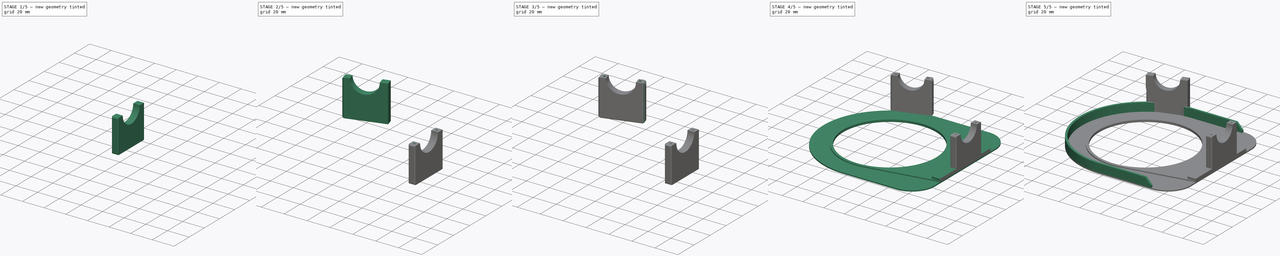
[diagram: build sequence overview — one tinted view per stage of 5, left to right]
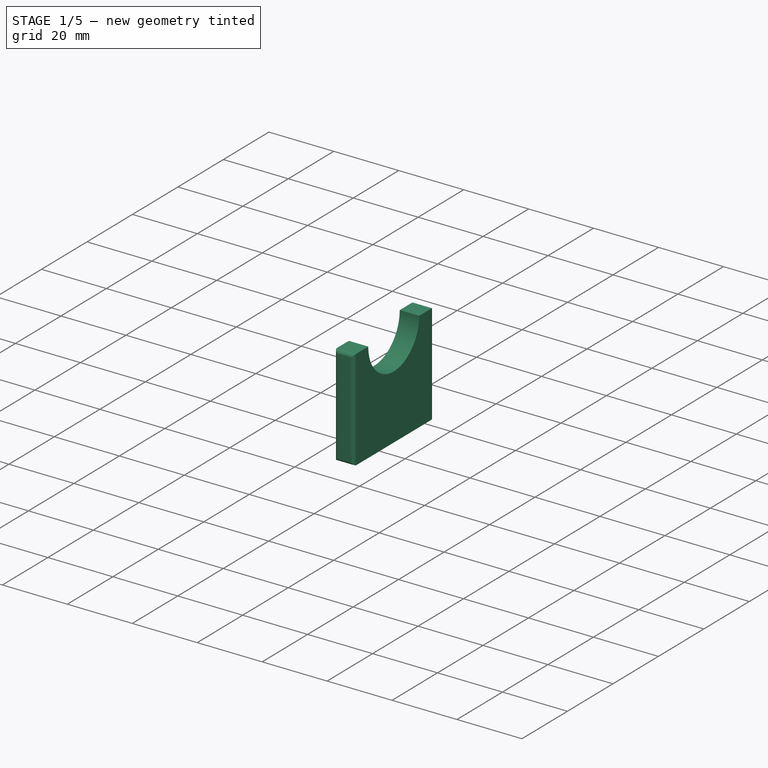
[diagram: stage 1 of 5 — iso view after this stage's code; geometry added in this stage tinted green]
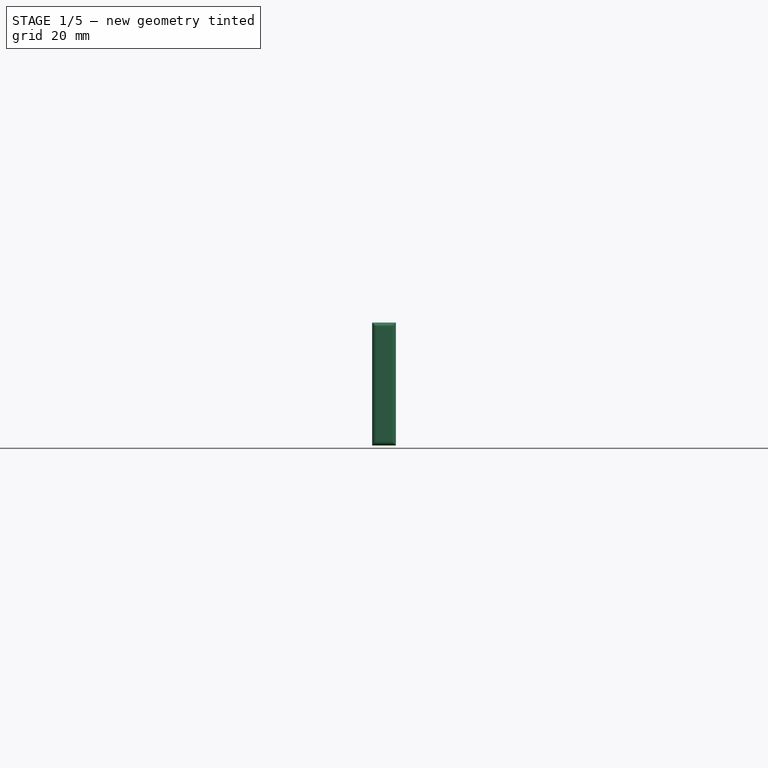
[diagram: stage 1 of 5 — front view after this stage's code; geometry added in this stage tinted green]
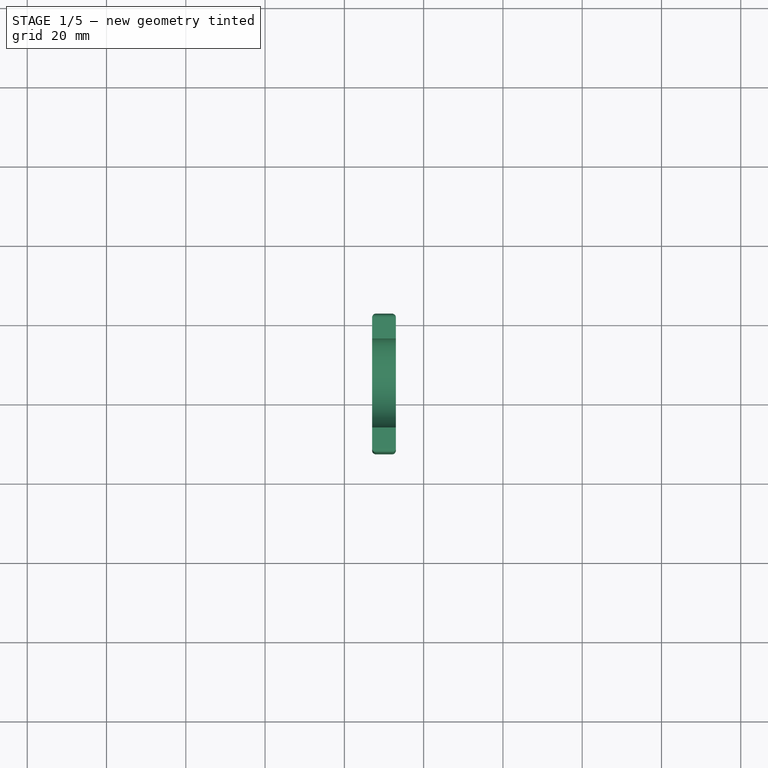
[diagram: stage 1 of 5 — top view after this stage's code; geometry added in this stage tinted green]
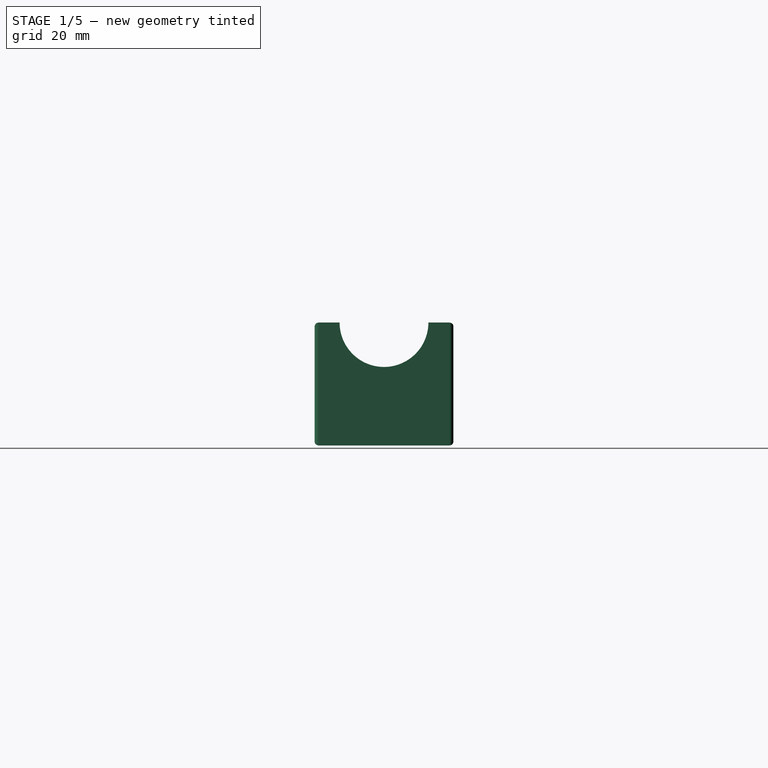
[diagram: stage 1 of 5 — right view after this stage's code; geometry added in this stage tinted green]
FCSTD DOCUMENT  (FreeCAD 0.16R)
Label: chainguard25TRear
License: All rights reserved
LicenseURL: http://en.wikipedia.org/wiki/All_rights_reserved
objects: Sketcher::SketchObject×12, PartDesign::Pad×6, PartDesign::Pocket×6, PartDesign::Fillet×5
note: 41 computed .brp shape members not serialized (recipe doc carries the construction recipe); baked Part::Feature solids carry a one-line shape summary decoded from their .brp

FEATURE [Sketcher::SketchObject] Sketch017
  sketch-geometry (5):
    g0: LineSegment [constr] StartX=-4 StartY=2 StartZ=0 EndX=-28.2669 EndY=81.3733 EndZ=0
    g1: LineSegment StartX=-6.10171 StartY=68.7297 StartZ=0 EndX=-39.5724 EndY=58.4967 EndZ=0
    g2: LineSegment StartX=-39.5724 StartY=58.4967 StartZ=0 EndX=-37.8181 EndY=52.7588 EndZ=0
    g3: LineSegment StartX=-37.8181 StartY=52.7588 StartZ=0 EndX=-4.34748 EndY=62.9919 EndZ=0
    g4: LineSegment StartX=-4.34748 StartY=62.9919 StartZ=0 EndX=-6.10171 EndY=68.7297 EndZ=0
  constraints (15):
    c: DistanceY(g-1,g0) = 2
    c: DistanceX(g-1,g0) = -4
    c: Angle(g0) = 1.8675
    c: Coincident(g1,g2)
    c: Coincident(g2,g3)
    c: Coincident(g3,g4)
    c: Coincident(g1,g4)
    c: Parallel(g2,g4)
    c: Parallel(g1,g3)
    c: Perpendicular(g2,g1)
    c: Distance(g4) = 6
    c: Distance(g1) = 35
    c: Symmetric(g3,g2,g0)
    c: Distance(g-1,g1) = 69
    c: Distance(g0) = 83
FEATURE [Sketcher::SketchObject] Sketch020
  sketch-geometry (4):
    g0: LineSegment StartX=67 StartY=22.5 StartZ=0 EndX=73 EndY=22.5 EndZ=0
    g1: LineSegment StartX=73 StartY=22.5 StartZ=0 EndX=73 EndY=-12.5 EndZ=0
    g2: LineSegment StartX=73 StartY=-12.5 StartZ=0 EndX=67 EndY=-12.5 EndZ=0
    g3: LineSegment StartX=67 StartY=-12.5 StartZ=0 EndX=67 EndY=22.5 EndZ=0
  constraints (12):
    c: Coincident(g0,g1)
    c: Coincident(g1,g2)
    c: Coincident(g2,g3)
    c: Coincident(g3,g0)
    c: Horizontal(g0)
    c: Horizontal(g2)
    c: Vertical(g1)
    c: Vertical(g3)
    c: DistanceX(g-1,g0) = 73
    c: DistanceX(g0,g0) = 6
    c: DistanceY(g-1,g0) = 22.5
    c: DistanceY(g1,g1) = 35
FEATURE [PartDesign::Pad] Pad004  label="SyncBoss"
  Length = 31
  Length2 = 100
  Sketch = -> Sketch020
  Type = 0
FEATURE [Sketcher::SketchObject] Sketch021
  ExternalGeometry = -> [Pad004]
  Placement = pos=(73,0,0) rot=(0.57735,0.57735,0.57735;2.0944rad)
  Support = -> Pad004 [Face2]
  sketch-geometry (1):
    g0: Circle CenterX=5 CenterY=31 CenterZ=0 NormalX=0 NormalY=0 NormalZ=1 Radius=11.2
  constraints (2):
    c: Symmetric(g-4,g-3,g0)
    c: Radius(g0) = 11.2
FEATURE [PartDesign::Pocket] Pocket  label="SyncHole"
  Length = 5
  Sketch = -> Sketch021
  Type = 1
FEATURE [PartDesign::Fillet] Fillet004  label="Fillet_Sync"
  Base = -> Pocket [Edge11,Edge9,Edge15,Edge18,Edge1,Edge2,Edge3,Edge4]
  Radius = 1
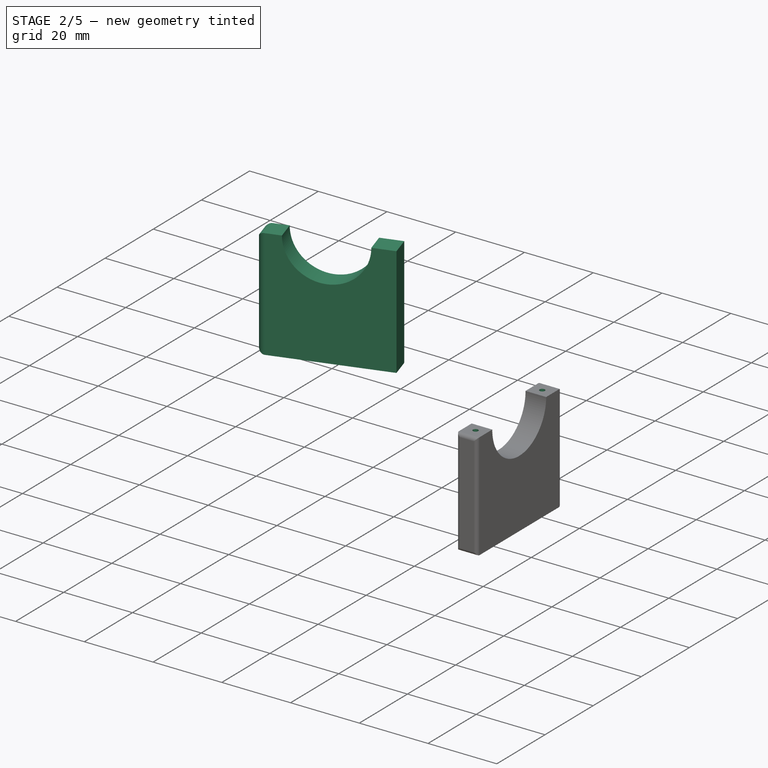
[diagram: stage 2 of 5 — iso view after this stage's code; geometry added in this stage tinted green]
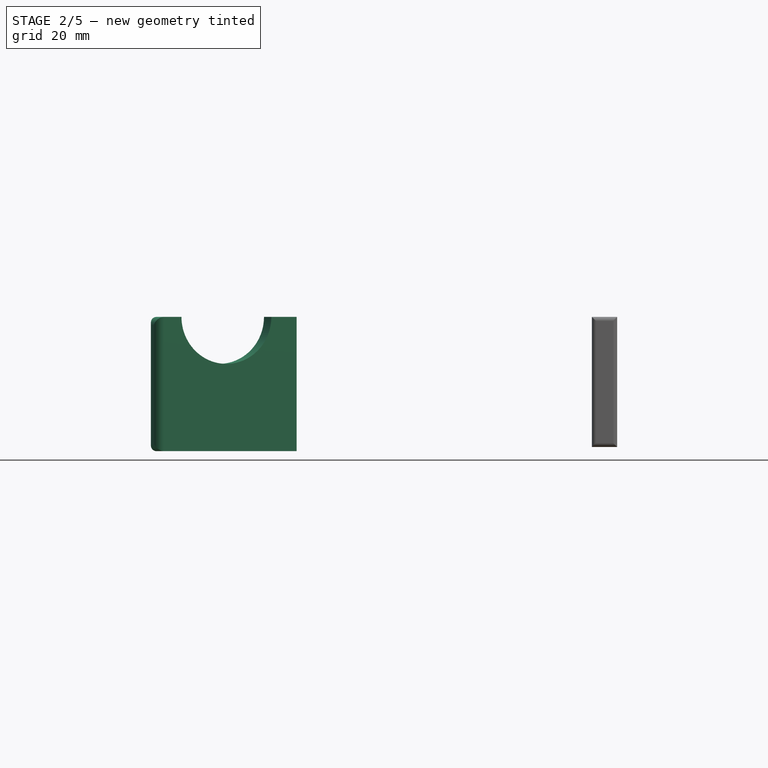
[diagram: stage 2 of 5 — front view after this stage's code; geometry added in this stage tinted green]
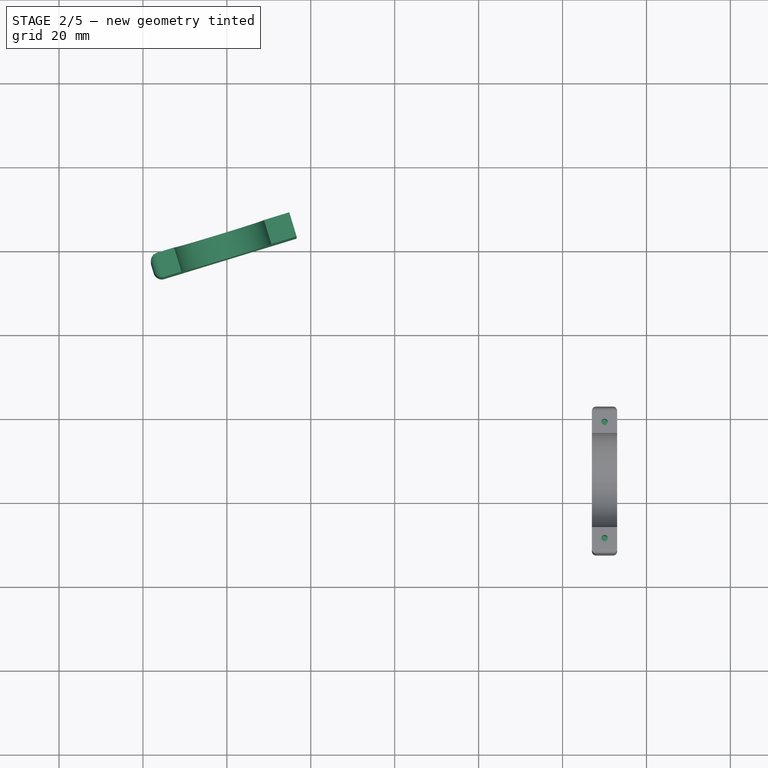
[diagram: stage 2 of 5 — top view after this stage's code; geometry added in this stage tinted green]
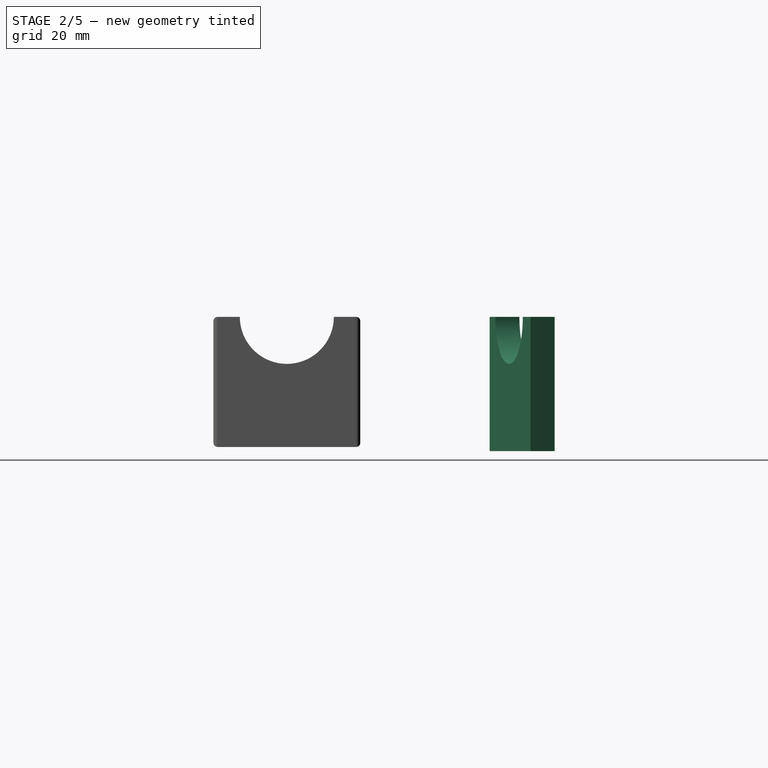
[diagram: stage 2 of 5 — right view after this stage's code; geometry added in this stage tinted green]
FEATURE [PartDesign::Pad] Pad005  label="STBoss"
  Length = 31
  Length2 = 1
  Sketch = -> Sketch017
  Type = 4
FEATURE [Sketcher::SketchObject] Sketch022
  ExternalGeometry = -> [Pad005]
  Placement = pos=(-19.677,64.3606,0) rot=(-0.105093,0.703191,0.703191;3.35101rad)
  Support = -> Pad005 [Face1]
  sketch-geometry (1):
    g0: Circle CenterX=2.28417 CenterY=31 CenterZ=0 NormalX=0 NormalY=0 NormalZ=1 Radius=11.2
  constraints (2):
    c: Symmetric(g-4,g-3,g0)
    c: Radius(g0) = 11.2
FEATURE [PartDesign::Pocket] Pocket006  label="SThole"
  Length = 5
  Sketch = -> Sketch022
  Type = 1
FEATURE [PartDesign::Fillet] Fillet001
  Base = -> Pocket006 [Edge2,Edge10,Edge7,Edge11]
  Radius = 2
FEATURE [Sketcher::SketchObject] Sketch027
  ExternalGeometry = -> [Fillet004]
  Placement = pos=(0,0,31) rot=(0,0,1;0rad)
  Support = -> Fillet004 [Face8]
  sketch-geometry (2):
    g0: Circle CenterX=70 CenterY=18.85 CenterZ=0 NormalX=0 NormalY=0 NormalZ=1 Radius=0.75
    g1: Circle CenterX=70 CenterY=-8.85 CenterZ=0 NormalX=0 NormalY=0 NormalZ=1 Radius=0.75
  constraints (4):
    c: Symmetric(g-4,g-5,g1)
    c: Symmetric(g-3,g-6,g0)
    c: Equal(g0,g1)
    c: Radius(g0) = 0.75
FEATURE [PartDesign::Pocket] Pocket009  label="SyncSCrewHoles"
  Length = 12
  Sketch = -> Sketch027
  Type = 0
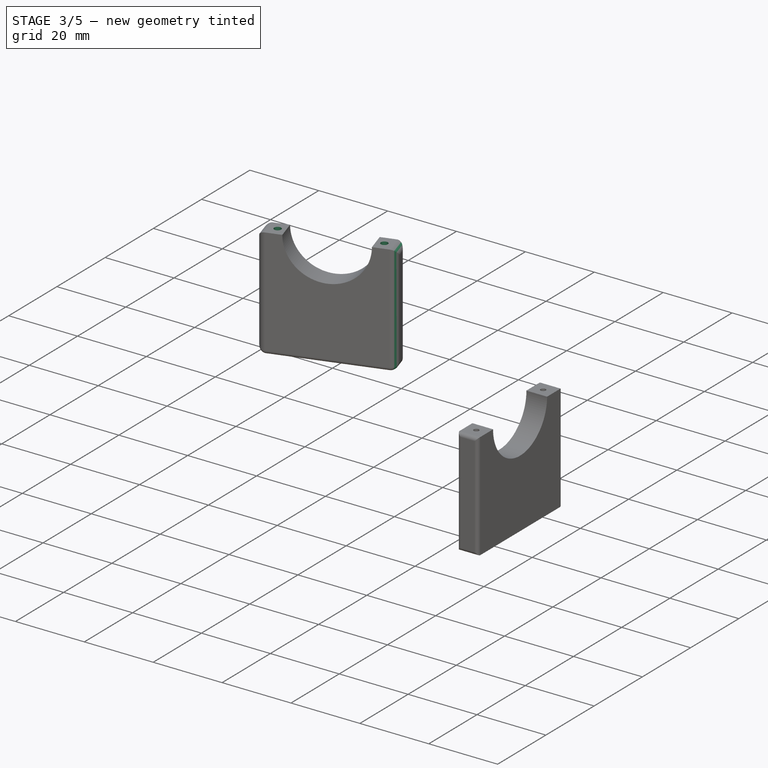
[diagram: stage 3 of 5 — iso view after this stage's code; geometry added in this stage tinted green]
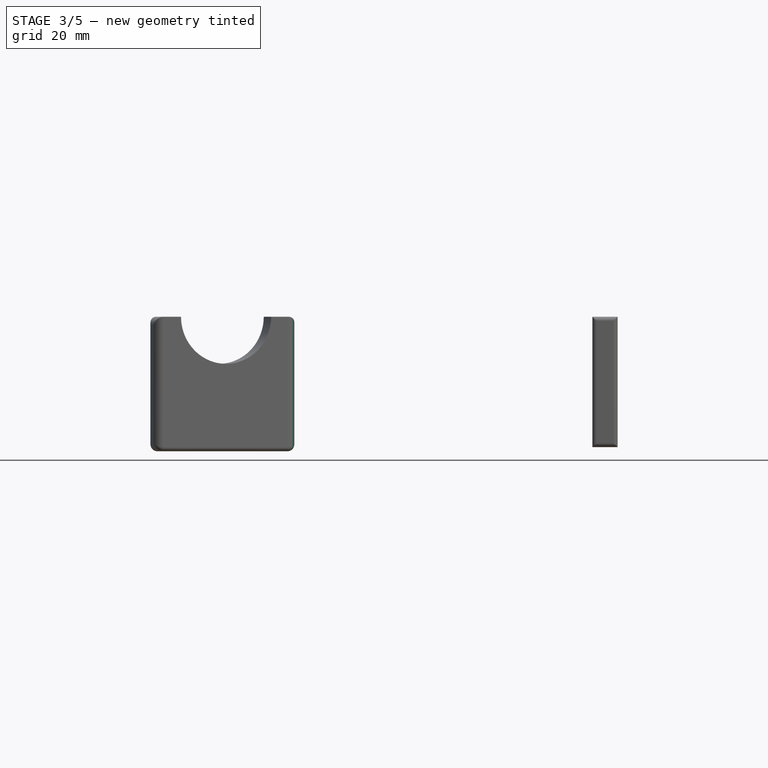
[diagram: stage 3 of 5 — front view after this stage's code; geometry added in this stage tinted green]
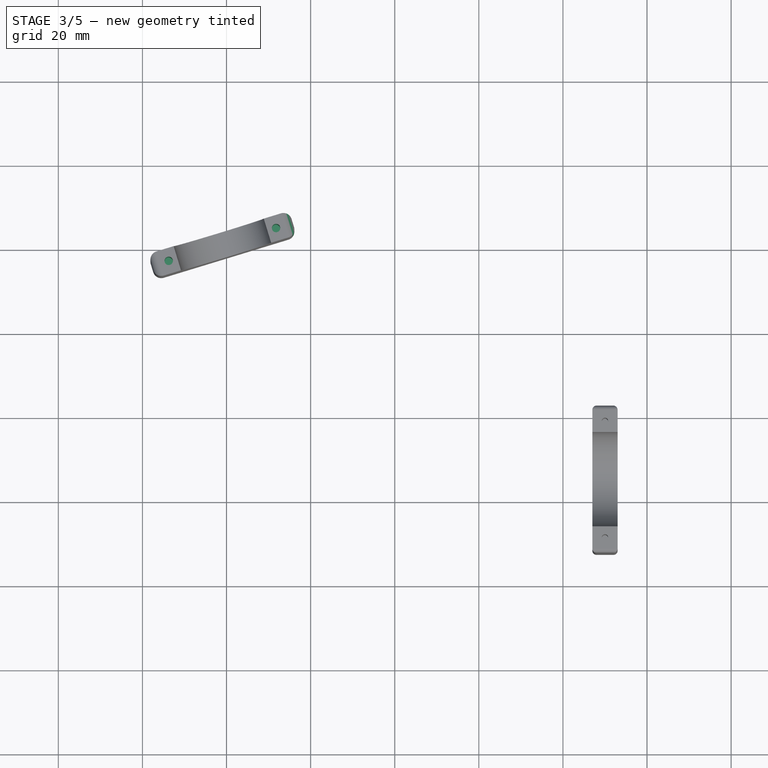
[diagram: stage 3 of 5 — top view after this stage's code; geometry added in this stage tinted green]
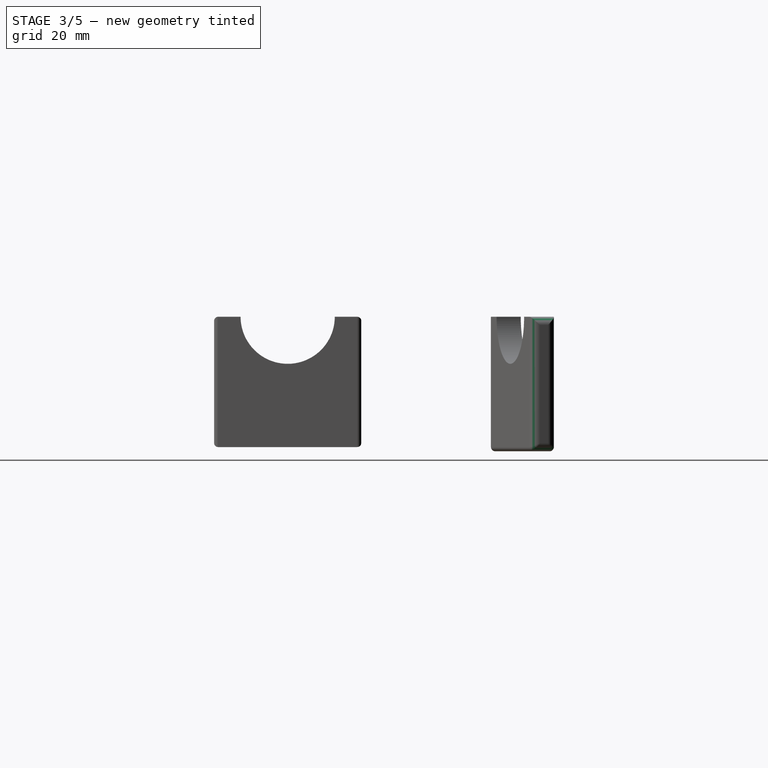
[diagram: stage 3 of 5 — right view after this stage's code; geometry added in this stage tinted green]
FEATURE [PartDesign::Fillet] Fillet002
  Base = -> Fillet001 [Edge13,Edge3,Edge8,Edge14]
  Radius = 2
FEATURE [PartDesign::Fillet] Fillet003  label="fillet_ST1"
  Base = -> Fillet002 [Edge1,Edge9]
  Radius = 1
FEATURE [Sketcher::SketchObject] Sketch026
  ExternalGeometry = -> [Fillet003]
  Placement = pos=(0,0,31) rot=(0,0,1;0rad)
  Support = -> Fillet003 [Face4]
  sketch-geometry (4):
    g0: Circle CenterX=-8.21761 CenterY=64.7271 CenterZ=0 NormalX=0 NormalY=0 NormalZ=1 Radius=1
    g1: Circle CenterX=-33.7509 CenterY=56.9207 CenterZ=0 NormalX=0 NormalY=0 NormalZ=1 Radius=1
    g2: Circle CenterX=66.9629 CenterY=24.5752 CenterZ=0 NormalX=0 NormalY=0 NormalZ=1 Radius=1.79531
    g3: Circle CenterX=61.4622 CenterY=-12.93 CenterZ=0 NormalX=0 NormalY=0 NormalZ=1 Radius=4.02825
  constraints (4):
    c: Symmetric(g-5,g-6,g1)
    c: Symmetric(g-3,g-4,g0)
    c: Equal(g0,g1)
    c: Radius(g0) = 1
FEATURE [PartDesign::Pocket] Pocket008  label="STscrewHoles"
  Length = 12
  Sketch = -> Sketch026
  Type = 0
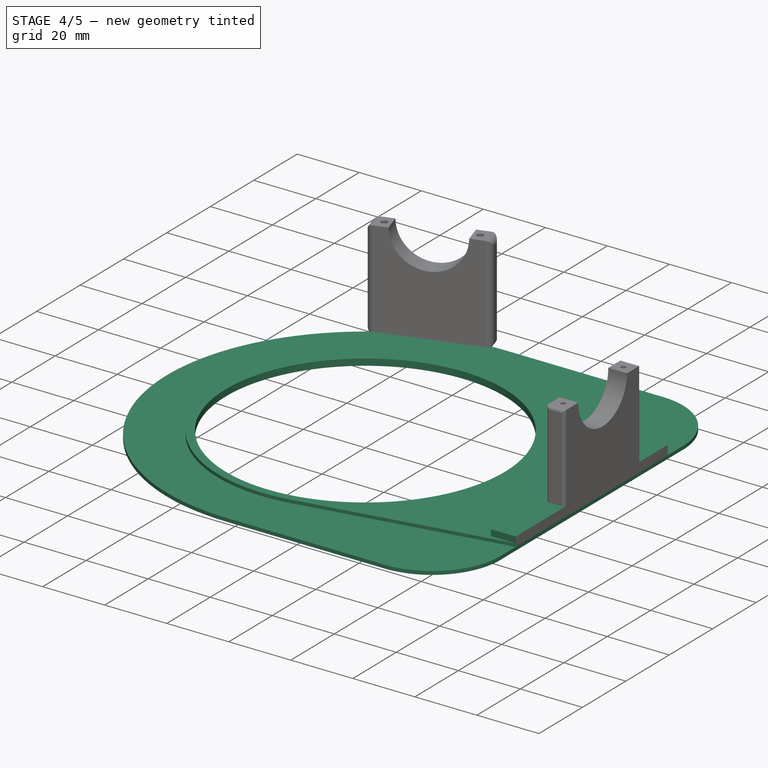
[diagram: stage 4 of 5 — iso view after this stage's code; geometry added in this stage tinted green]
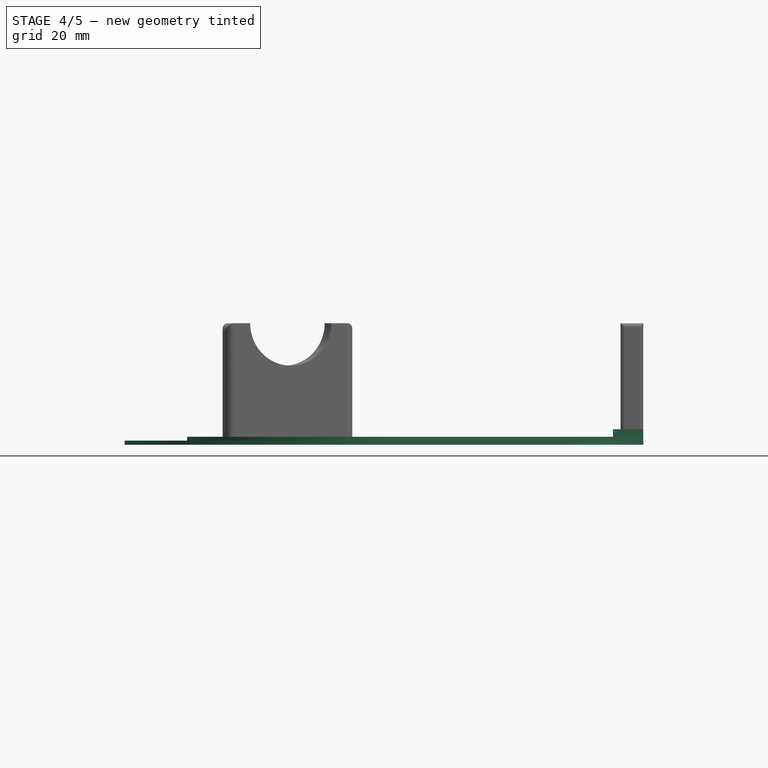
[diagram: stage 4 of 5 — front view after this stage's code; geometry added in this stage tinted green]
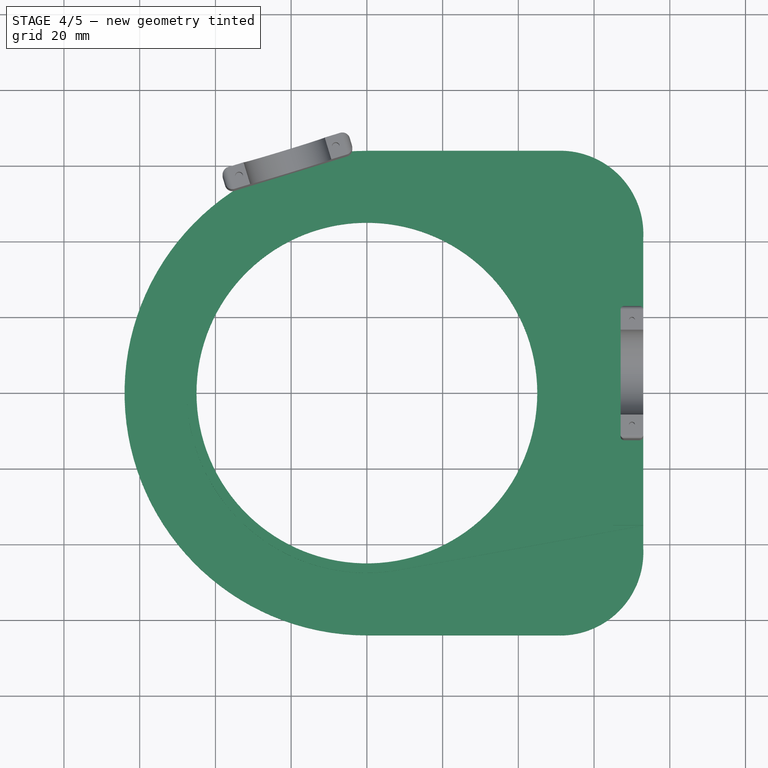
[diagram: stage 4 of 5 — top view after this stage's code; geometry added in this stage tinted green]
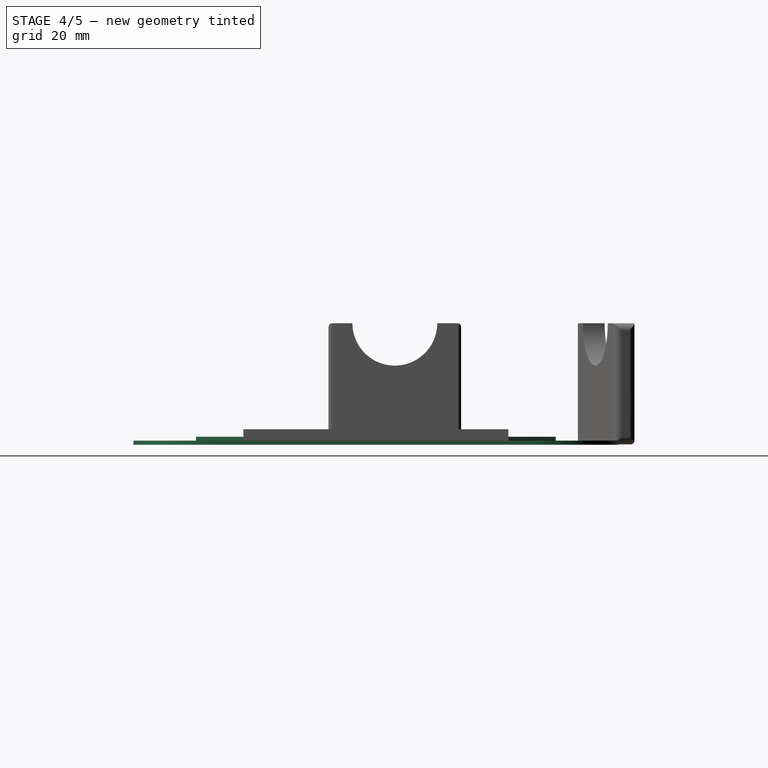
[diagram: stage 4 of 5 — right view after this stage's code; geometry added in this stage tinted green]
FEATURE [Sketcher::SketchObject] Sketch001
  sketch-geometry (7):
    g0: LineSegment StartX=50 StartY=64 StartZ=0 EndX=0 EndY=64 EndZ=0
    g1: LineSegment StartX=50 StartY=-64 StartZ=0 EndX=0 EndY=-64 EndZ=0
    g2: ArcOfCircle CenterX=-6.3665e-05 CenterY=0 CenterZ=0 NormalX=0 NormalY=0 NormalZ=1 Radius=64 StartAngle=1.5708 EndAngle=4.71239
    g3: Circle CenterX=0 CenterY=0 CenterZ=0 NormalX=0 NormalY=0 NormalZ=1 Radius=45
    g4: ArcOfCircle CenterX=51.0238 CenterY=42.0238 CenterZ=0 NormalX=0 NormalY=0 NormalZ=1 Radius=22 StartAngle=6.23663 EndAngle=7.90054
    g5: ArcOfCircle CenterX=51.0238 CenterY=-42.0238 CenterZ=0 NormalX=0 NormalY=0 NormalZ=1 Radius=22 StartAngle=4.66583 EndAngle=6.32974
    g6: LineSegment StartX=73 StartY=41 StartZ=0 EndX=73 EndY=-41 EndZ=0
  constraints (22):
    c: Horizontal(g0)
    c: Horizontal(g1)
    c: Coincident(g2,g1)
    c: Coincident(g0,g2)
    c: DistanceX(g1,g0) = 0
    c: Equal(g0,g1)
    c: DistanceY(g1,g0) = 128
    c: Radius(g2) = 64
    c: Symmetric(g1,g0,g-1)
    c: Radius(g3) = 45
    c: Coincident(g3,g-1)
    c: DistanceX(g0,g0) = 50
    c: Vertical(g6)
    c: Symmetric(g6,g6,g-1)
    c: DistanceY(g6,g6) = 82
    c: Coincident(g4,g6)
    c: Coincident(g5,g6)
    c: Coincident(g1,g5)
    c: Coincident(g0,g4)
    c: DistanceX(g-1,g4) = 73
    c: Radius(g4) = 22
    c: Equal(g5,g4)
FEATURE [PartDesign::Pad] Pad  label="Faceplate"
  Length = 1.12
  Length2 = 100
  Reversed = true
  Sketch = -> Sketch001
  Type = 0
FEATURE [Sketcher::SketchObject] Sketch
  Support = -> Pad [Face8]
  sketch-geometry (4):
    g0: LineSegment StartX=65 StartY=35 StartZ=0 EndX=73 EndY=35 EndZ=0
    g1: LineSegment StartX=73 StartY=35 StartZ=0 EndX=73 EndY=-35 EndZ=0
    g2: LineSegment StartX=73 StartY=-35 StartZ=0 EndX=65 EndY=-35 EndZ=0
    g3: LineSegment StartX=65 StartY=-35 StartZ=0 EndX=65 EndY=35 EndZ=0
  constraints (12):
    c: Coincident(g0,g1)
    c: Coincident(g1,g2)
    c: Coincident(g2,g3)
    c: Coincident(g3,g0)
    c: Horizontal(g0)
    c: Horizontal(g2)
    c: Vertical(g1)
    c: Vertical(g3)
    c: Symmetric(g0,g2,g-1)
    c: DistanceX(g0,g0) = 8
    c: DistanceX(g-1,g0) = 73
    c: DistanceY(g3,g3) = 70
FEATURE [PartDesign::Pad] Pad003  label="SyncStiffener"
  Length = 3
  Length2 = 100
  Sketch = -> Sketch
  Type = 0
FEATURE [Sketcher::SketchObject] Sketch024
  ExternalGeometry = -> [Pad003]
  Support = -> Pad003 [Face4]
  sketch-geometry (5):
    g0: ArcOfCircle CenterX=0 CenterY=0 CenterZ=0 NormalX=0 NormalY=0 NormalZ=1 Radius=47.5 StartAngle=1.39086 EndAngle=4.89233
    g1: Circle CenterX=0 CenterY=0 CenterZ=0 NormalX=0 NormalY=0 NormalZ=1 Radius=45
    g2: LineSegment StartX=8.50102 StartY=46.7331 StartZ=0 EndX=73 EndY=35 EndZ=0
    g3: LineSegment StartX=8.50102 StartY=-46.7331 StartZ=0 EndX=73 EndY=-35 EndZ=0
    g4: LineSegment StartX=73 StartY=35 StartZ=0 EndX=73 EndY=-35 EndZ=0
  constraints (12):
    c: Coincident(g0,g-1)
    c: Radius(g0) = 47.5
    c: Coincident(g1,g-1)
    c: Radius(g1) = 45
    c: Coincident(g-4,g3)
    c: Coincident(g-4,g2)
    c: Coincident(g0,g2)
    c: Coincident(g0,g3)
    c: Coincident(g2,g4)
    c: Coincident(g4,g3)
    c: DistanceY(g0,g-1) = 46.7331
    c: DistanceY(g-1,g0) = 46.7331
FEATURE [PartDesign::Pad] Pad006  label="HoleStiffener"
  Length = 1
  Length2 = 100
  Sketch = -> Sketch024
  Type = 0
FEATURE [PartDesign::Fillet] Fillet
  Base = -> Pad [Edge4,Edge7,Edge10,Edge13,Edge16,Edge18,Edge21]
  Radius = 1
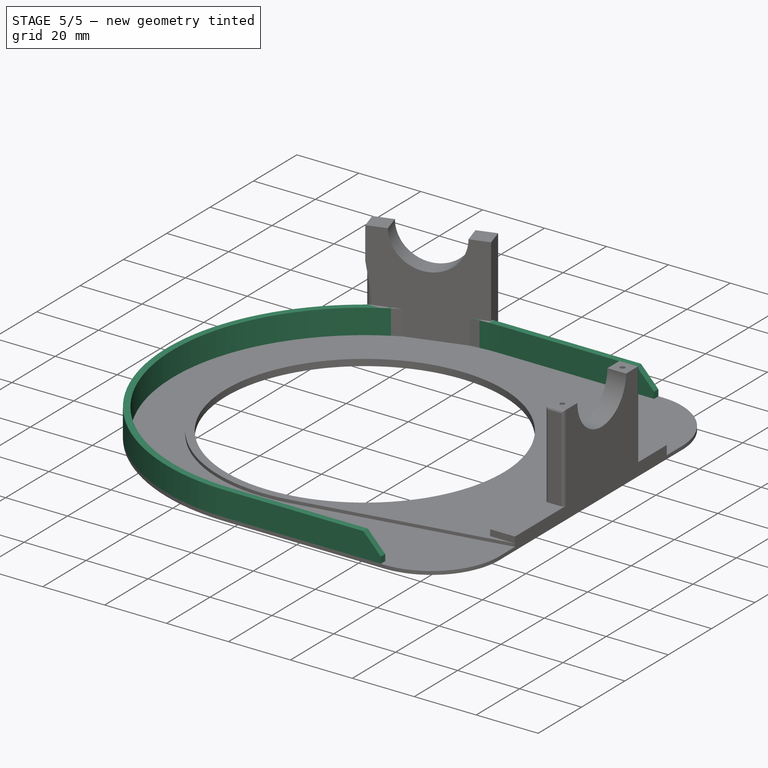
[diagram: stage 5 of 5 — iso view after this stage's code; geometry added in this stage tinted green]
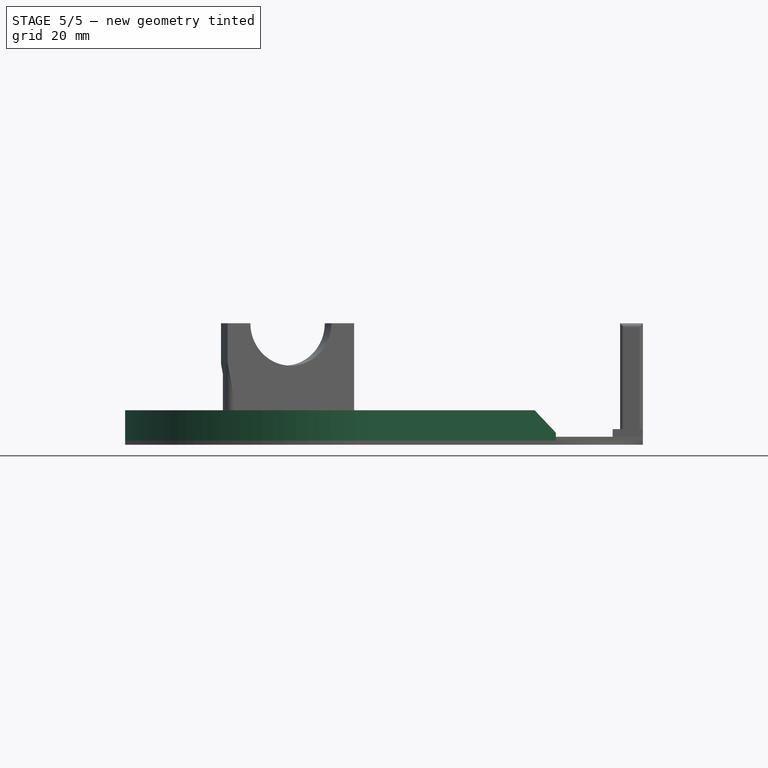
[diagram: stage 5 of 5 — front view after this stage's code; geometry added in this stage tinted green]
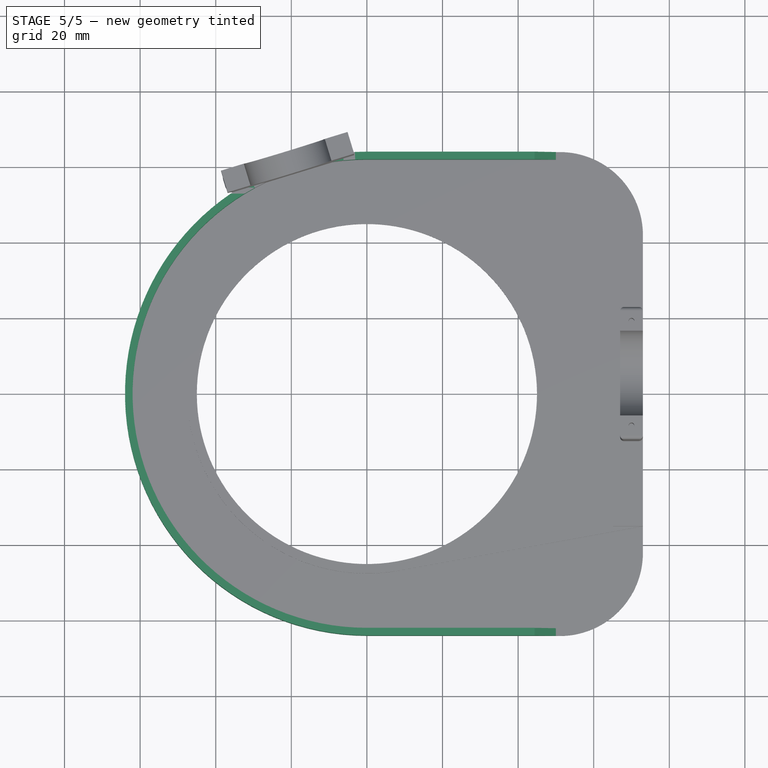
[diagram: stage 5 of 5 — top view after this stage's code; geometry added in this stage tinted green]
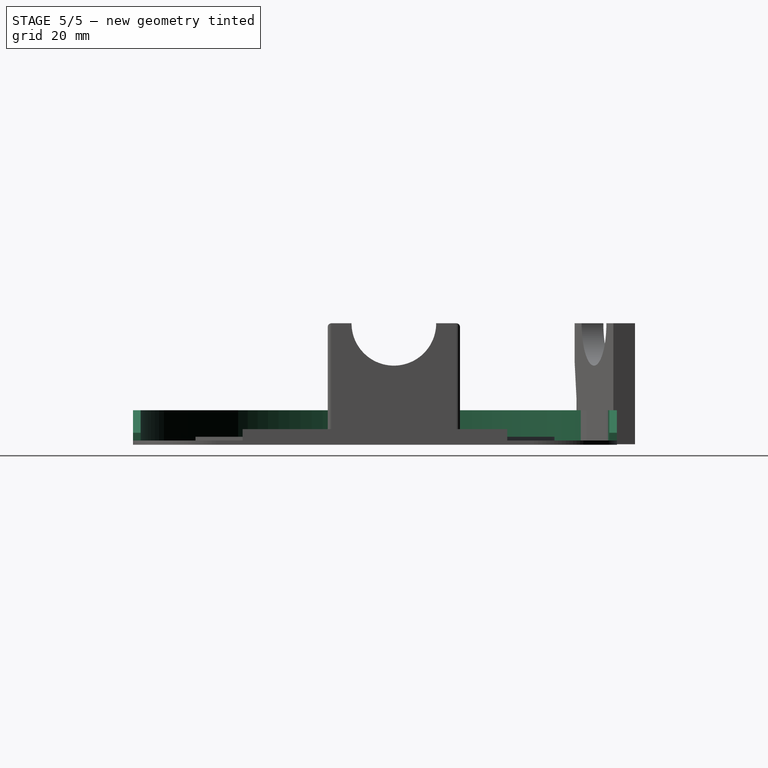
[diagram: stage 5 of 5 — right view after this stage's code; geometry added in this stage tinted green]
FEATURE [Sketcher::SketchObject] Sketch002
  sketch-geometry (8):
    g0: LineSegment StartX=50 StartY=64 StartZ=0 EndX=0 EndY=64 EndZ=0
    g1: LineSegment StartX=50 StartY=-64 StartZ=0 EndX=0 EndY=-64 EndZ=0
    g2: ArcOfCircle CenterX=5.67081e-05 CenterY=0 CenterZ=0 NormalX=0 NormalY=0 NormalZ=1 Radius=64 StartAngle=1.5708 EndAngle=4.71239
    g3: LineSegment StartX=0 StartY=62 StartZ=0 EndX=50 EndY=62 EndZ=0
    g4: LineSegment StartX=0 StartY=-62 StartZ=0 EndX=50 EndY=-62 EndZ=0
    g5: LineSegment StartX=50 StartY=64 StartZ=0 EndX=50 EndY=62 EndZ=0
    g6: LineSegment StartX=50 StartY=-62 StartZ=0 EndX=50 EndY=-64 EndZ=0
    g7: ArcOfCircle CenterX=3.52524e-05 CenterY=0 CenterZ=0 NormalX=0 NormalY=0 NormalZ=1 Radius=62 StartAngle=1.5708 EndAngle=4.71239
  constraints (25):
    c: Horizontal(g0)
    c: Horizontal(g1)
    c: Coincident(g2,g1)
    c: Coincident(g0,g2)
    c: DistanceX(g1,g0) = 0
    c: Equal(g0,g1)
    c: DistanceY(g1,g0) = 128
    c: Radius(g2) = 64
    c: Symmetric(g1,g0,g-1)
    c: Radius(g7) = 62
    c: Parallel(g0,g3)
    c: DistanceY(g3,g0) = 2
    c: DistanceY(g1,g4) = 2
    c: Parallel(g4,g1)
    c: DistanceX(g0,g3) = 0
    c: DistanceX(g4) = 0
    c: DistanceX(g0) = 50
    c: Equal(g3,g0)
    c: Equal(g4,g0)
    c: Coincident(g4,g6)
    c: Coincident(g6,g1)
    c: Coincident(g5,g3)
    c: Coincident(g5,g0)
    c: Coincident(g7,g3)
    c: Coincident(g7,g4)
FEATURE [PartDesign::Pad] Pad001  label="Connector"
  Length = 8
  Length2 = 100
  Sketch = -> Sketch002
  Type = 0
FEATURE [Sketcher::SketchObject] Sketch011
  Placement = pos=(0,64,0) rot=(0,0.707107,0.707107;3.14159rad)
  Support = -> Pad001 [Face1]
  sketch-geometry (4):
    g0: LineSegment StartX=-44 StartY=8.40024 StartZ=0 EndX=-54.2498 EndY=10.8364 EndZ=0
    g1: LineSegment StartX=-54.2498 StartY=10.8364 StartZ=0 EndX=-51.2347 EndY=0.741769 EndZ=0
    g2: LineSegment StartX=-51.2347 StartY=0.741769 StartZ=0 EndX=-44 EndY=8.40024 EndZ=0
    g3: Circle [constr] CenterX=-49.8281 CenterY=6.65947 CenterZ=0 NormalX=0 NormalY=0 NormalZ=1 Radius=6.08256
  constraints (14):
    c: Coincident(g0,g1)
    c: Coincident(g1,g2)
    c: Coincident(g2,g0)
    c: Equal(g0,g1)
    c: Equal(g0,g2)
    c: PointOnObject(g0,g3)
    c: PointOnObject(g1,g3)
    c: PointOnObject(g2,g3)
    c: DistanceY(g-1,g0) = 8.40024
    c: DistanceX(g0,g-1) = 44
    c: Equal(g2,g0)
    c: Equal(g0,g1)
    c: Distance(g2) = 10.5353
    c: Angle(g0) = 2.90824
FEATURE [PartDesign::Pocket] Pocket005  label="Bevel_connector"
  Length = 5
  Sketch = -> Sketch011
  Type = 1
FEATURE [Sketcher::SketchObject] Sketch023
  Placement = pos=(-19.677,64.3606,0) rot=(-0.105093,0.703191,0.703191;3.35101rad)
  Support = -> Pocket006 [Face1]
  sketch-geometry (3):
    g0: LineSegment StartX=21.3703 StartY=29.4568 StartZ=0 EndX=16 EndY=-1 EndZ=0
    g1: LineSegment StartX=16 StartY=-1 StartZ=0 EndX=45.0615 EndY=9.57752 EndZ=0
    g2: LineSegment StartX=45.0615 StartY=9.57752 StartZ=0 EndX=21.3703 EndY=29.4568 EndZ=0
  constraints (9):
    c: Coincident(g0,g1)
    c: Coincident(g1,g2)
    c: Coincident(g0,g2)
    c: Equal(g0,g2)
    c: Equal(g2,g1)
    c: DistanceY(g0,g-1) = 1
    c: Angle(g1) = 0.349066
    c: Distance(g2) = 30.9266
    c: DistanceX(g-1,g0) = 16
FEATURE [PartDesign::Pocket] Pocket007  label="STbevel1"
  Length = 6
  Sketch = -> Sketch023
  Type = 0
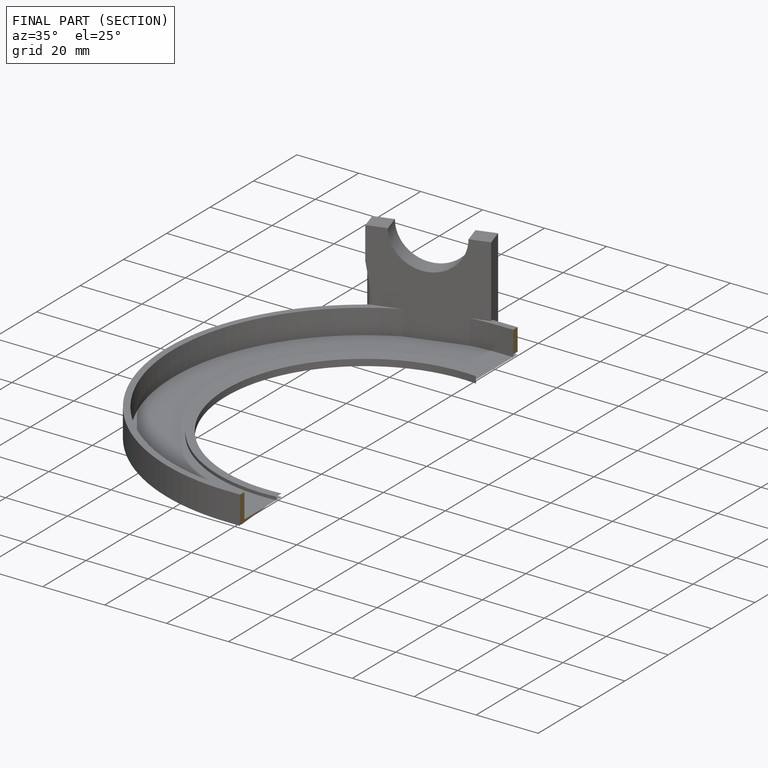
[diagram: finished part — half-section view (interior)]
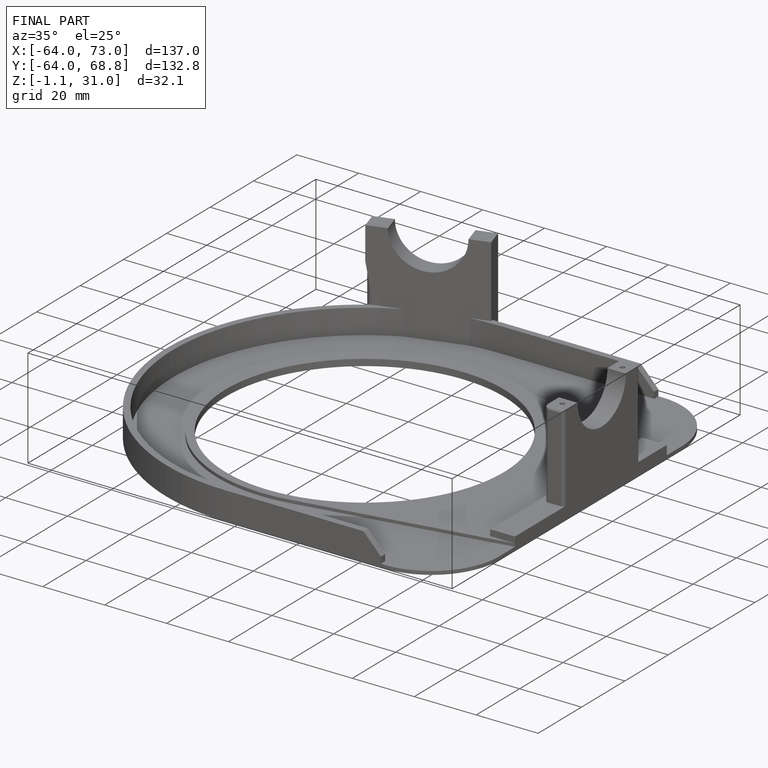
[diagram: finished part — iso view with bounding-box wireframe]
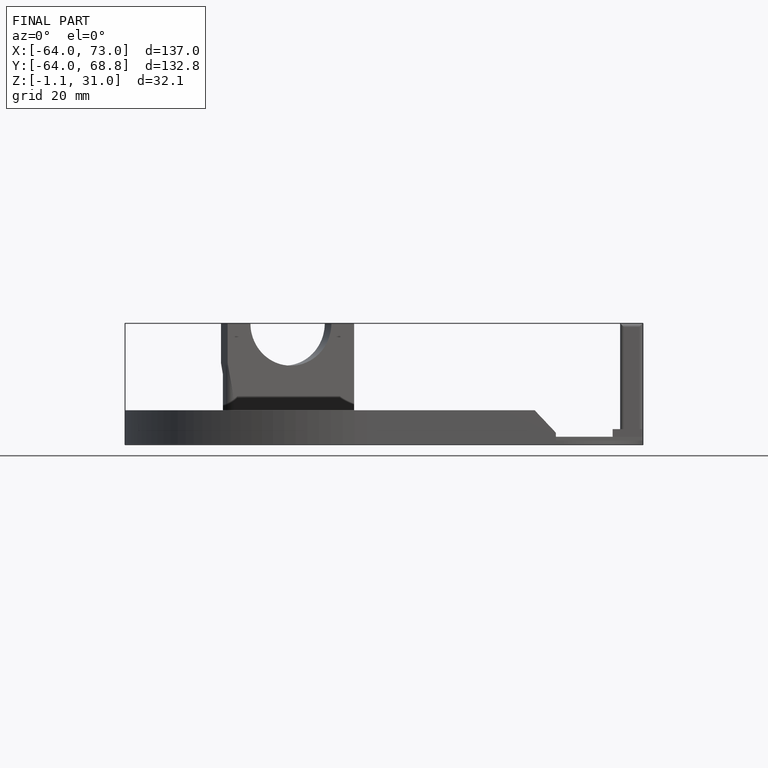
[diagram: finished part — front view with bounding-box wireframe]
